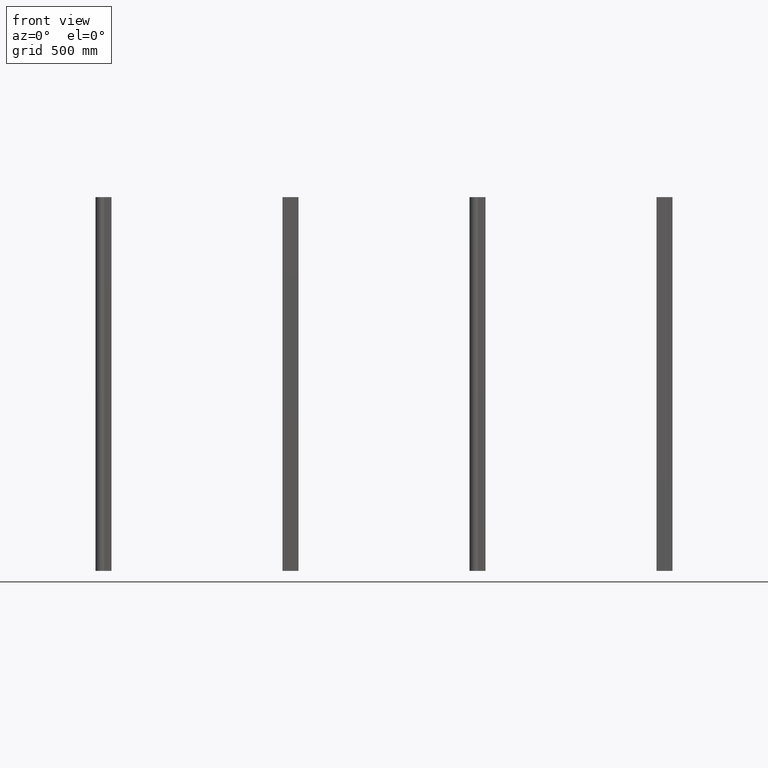
[diagram: clean part render]
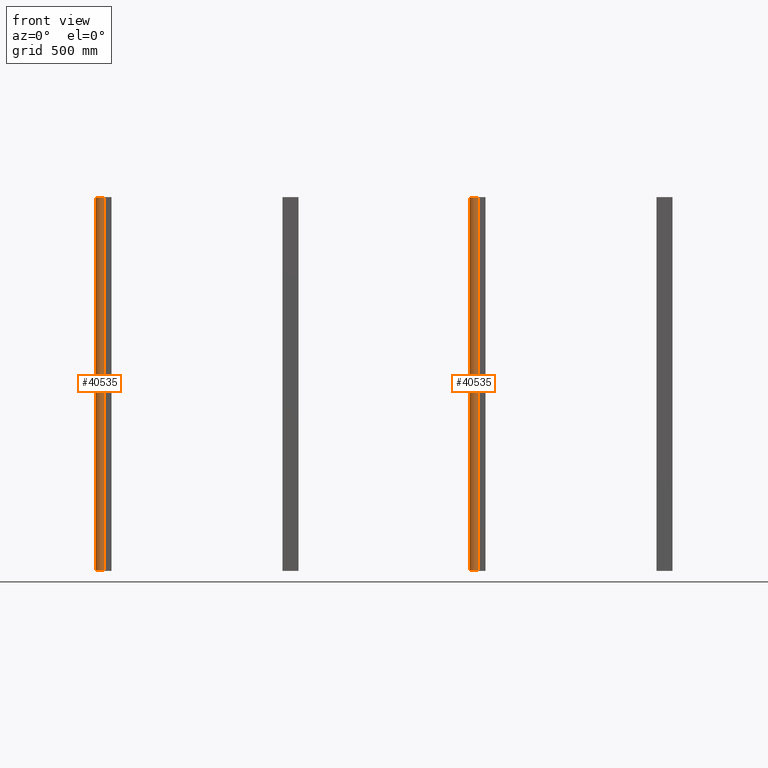
[diagram: same view with one multi-face feature highlighted, each face labeled with its STEP entity id]
A machine part, front view. The highlighted faces form ONE feature: a constant-radius fillet chain: 2 tangent blend faces with common blend radius 25 mm. The faces share edges in the B-rep.
Their STEP definitions:
[1] entity #40535 (Cylinder):
#4347=LINE('',#78439,#7296);
#4348=LINE('',#78445,#7297);
#7296=VECTOR('',#56613,10.);
#7297=VECTOR('',#56620,10.);
#10415=FACE_OUTER_BOUND('',#12656,.T.);
#12656=EDGE_LOOP('',(#37036,#37037,#37038,#37039));
#13907=CIRCLE('',#44983,24.9999999999978);
#13908=CIRCLE('',#44984,24.9999999999978);
#18813=VERTEX_POINT('',#78435);
#18814=VERTEX_POINT('',#78437);
#18815=VERTEX_POINT('',#78441);
#18816=VERTEX_POINT('',#78443);
#24931=EDGE_CURVE('',#18813,#18814,#4347,.T.);
#24932=EDGE_CURVE('',#18815,#18813,#13907,.T.);
#24933=EDGE_CURVE('',#18816,#18814,#13908,.T.);
#24934=EDGE_CURVE('',#18815,#18816,#4348,.T.);
#37036=ORIENTED_EDGE('',*,*,#24932,.T.);
#37037=ORIENTED_EDGE('',*,*,#24931,.T.);
#37038=ORIENTED_EDGE('',*,*,#24933,.F.);
#37039=ORIENTED_EDGE('',*,*,#24934,.F.);
#38464=CYLINDRICAL_SURFACE('',#44982,24.9999999999978);
#40535=ADVANCED_FACE('',(#10415),#38464,.T.);
#44982=AXIS2_PLACEMENT_3D('',#78440,#56614,#56615);
#44983=AXIS2_PLACEMENT_3D('',#78442,#56616,#56617);
#44984=AXIS2_PLACEMENT_3D('',#78444,#56618,#56619);
#56613=DIRECTION('',(0.,0.,1.));
#56614=DIRECTION('center_axis',(0.,0.,1.));
#56615=DIRECTION('ref_axis',(1.,-1.06581410364017E-15,0.));
#56616=DIRECTION('center_axis',(0.,0.,1.));
#56617=DIRECTION('ref_axis',(1.,-1.06581410364017E-15,0.));
#56618=DIRECTION('center_axis',(0.,0.,1.));
#56619=DIRECTION('ref_axis',(1.,-1.06581410364017E-15,0.));
#56620=DIRECTION('',(0.,0.,1.));
#78435=CARTESIAN_POINT('',(1.55412201282525,11.2203480218468,1.));
#78437=CARTESIAN_POINT('',(1.55412201282525,11.2203480218468,1999.));
#78439=CARTESIAN_POINT('',(1.55412201282525,11.2203480218468,0.));
#78440=CARTESIAN_POINT('Origin',(26.5541220128257,11.2203480218468,0.));
#78441=CARTESIAN_POINT('',(51.5541220128252,11.2203480218468,1.));
#78442=CARTESIAN_POINT('Origin',(26.5541220128257,11.2203480218468,1.));
#78443=CARTESIAN_POINT('',(51.5541220128252,11.2203480218468,1999.));
#78444=CARTESIAN_POINT('Origin',(26.5541220128257,11.2203480218468,1999.));
#78445=CARTESIAN_POINT('',(51.5541220128252,11.2203480218468,0.));
[2] entity #40535 (Cylinder):
#4347=LINE('',#78439,#7296);
#4348=LINE('',#78445,#7297);
#7296=VECTOR('',#56613,10.);
#7297=VECTOR('',#56620,10.);
#10415=FACE_OUTER_BOUND('',#12656,.T.);
#12656=EDGE_LOOP('',(#37036,#37037,#37038,#37039));
#13907=CIRCLE('',#44983,24.9999999999978);
#13908=CIRCLE('',#44984,24.9999999999978);
#18813=VERTEX_POINT('',#78435);
#18814=VERTEX_POINT('',#78437);
#18815=VERTEX_POINT('',#78441);
#18816=VERTEX_POINT('',#78443);
#24931=EDGE_CURVE('',#18813,#18814,#4347,.T.);
#24932=EDGE_CURVE('',#18815,#18813,#13907,.T.);
#24933=EDGE_CURVE('',#18816,#18814,#13908,.T.);
#24934=EDGE_CURVE('',#18815,#18816,#4348,.T.);
#37036=ORIENTED_EDGE('',*,*,#24932,.T.);
#37037=ORIENTED_EDGE('',*,*,#24931,.T.);
#37038=ORIENTED_EDGE('',*,*,#24933,.F.);
#37039=ORIENTED_EDGE('',*,*,#24934,.F.);
#38464=CYLINDRICAL_SURFACE('',#44982,24.9999999999978);
#40535=ADVANCED_FACE('',(#10415),#38464,.T.);
#44982=AXIS2_PLACEMENT_3D('',#78440,#56614,#56615);
#44983=AXIS2_PLACEMENT_3D('',#78442,#56616,#56617);
#44984=AXIS2_PLACEMENT_3D('',#78444,#56618,#56619);
#56613=DIRECTION('',(0.,0.,1.));
#56614=DIRECTION('center_axis',(0.,0.,1.));
#56615=DIRECTION('ref_axis',(1.,-1.06581410364017E-15,0.));
#56616=DIRECTION('center_axis',(0.,0.,1.));
#56617=DIRECTION('ref_axis',(1.,-1.06581410364017E-15,0.));
#56618=DIRECTION('center_axis',(0.,0.,1.));
#56619=DIRECTION('ref_axis',(1.,-1.06581410364017E-15,0.));
#56620=DIRECTION('',(0.,0.,1.));
#78435=CARTESIAN_POINT('',(1.55412201282525,11.2203480218468,1.));
#78437=CARTESIAN_POINT('',(1.55412201282525,11.2203480218468,1999.));
#78439=CARTESIAN_POINT('',(1.55412201282525,11.2203480218468,0.));
#78440=CARTESIAN_POINT('Origin',(26.5541220128257,11.2203480218468,0.));
#78441=CARTESIAN_POINT('',(51.5541220128252,11.2203480218468,1.));
#78442=CARTESIAN_POINT('Origin',(26.5541220128257,11.2203480218468,1.));
#78443=CARTESIAN_POINT('',(51.5541220128252,11.2203480218468,1999.));
#78444=CARTESIAN_POINT('Origin',(26.5541220128257,11.2203480218468,1999.));
#78445=CARTESIAN_POINT('',(51.5541220128252,11.2203480218468,0.));